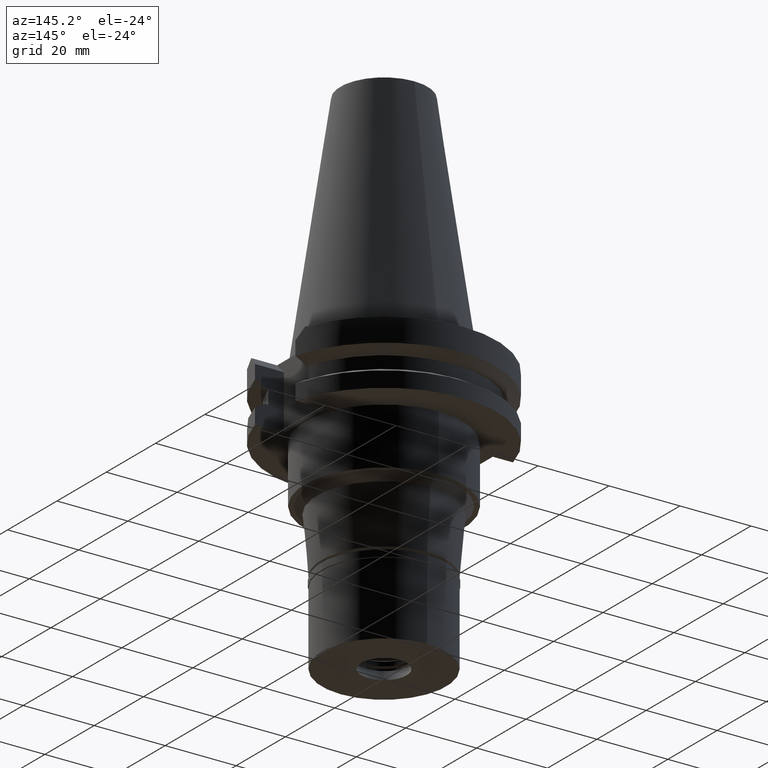
[diagram: clean part render]
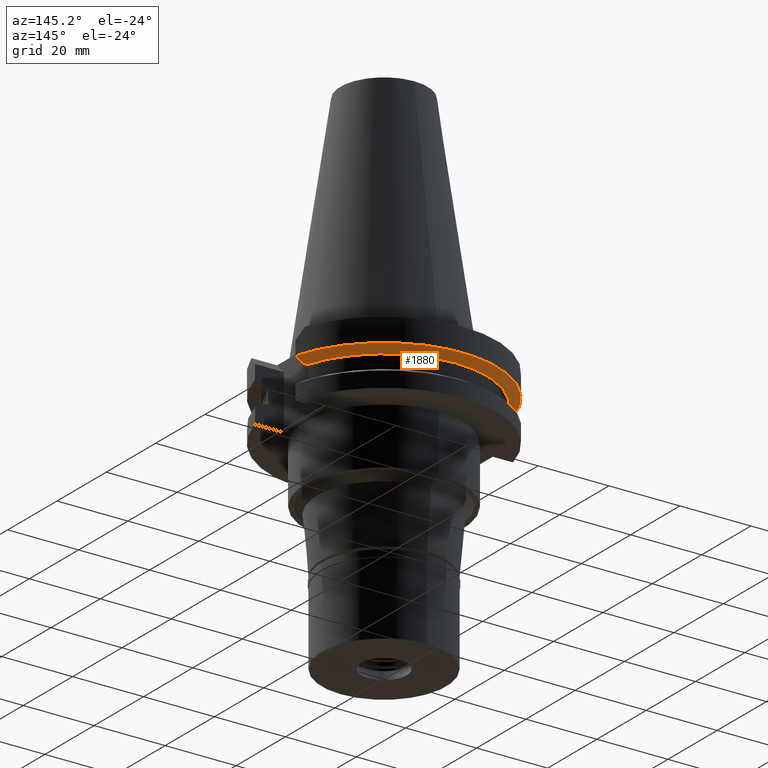
[diagram: same view with one face highlighted and labeled with its STEP entity id]
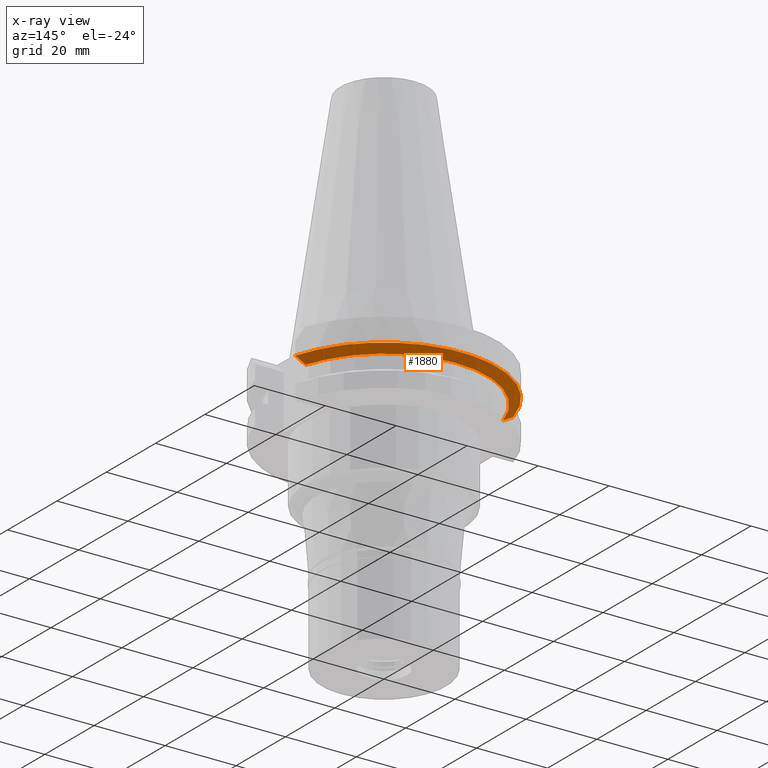
[diagram: x-ray of the same camera — body ghosted, the highlighted face saturated]
A machine part, auxiliary view. The second image highlights one B-rep face of the part: STEP entity #1880.
The next image is the same camera in x-ray: the body ghosted, the highlighted face saturated — about 2% of this face is hidden behind the body in this view.
In plain terms, the highlighted conical surface has half-angle 60 deg.
Its self-contained STEP definition (entity closure, byte-faithful):
#16 = EDGE_CURVE ( 'NONE', #690, #3021, #932, .T. ) ;
#117 = CARTESIAN_POINT ( 'NONE',  ( -27.79398349637000010, 8.190000188407999815, -9.210000000000999165 ) ) ;
#329 = CARTESIAN_POINT ( 'NONE',  ( -28.71170638819459597, 8.190000377242785845, -8.701759837849344592 ) ) ;
#340 = CARTESIAN_POINT ( 'NONE',  ( 30.67550165931999828, 8.189999874802001756, -7.608164476769999851 ) ) ;
#534 = VERTEX_POINT ( 'NONE', #2818 ) ;
#690 = VERTEX_POINT ( 'NONE', #340 ) ;
#695 = CARTESIAN_POINT ( 'NONE',  ( -30.67550146519999998, 8.190000601855000895, -7.608157979396000137 ) ) ;
#889 = B_SPLINE_CURVE_WITH_KNOTS ( 'NONE', 3,
 ( #1014, #2317, #1256, #1307 ),
 .UNSPECIFIED., .F., .F.,
 ( 4, 4 ),
 ( 0.0000000000000000000, 1.000000000000000000 ),
 .UNSPECIFIED. ) ;
#932 = CIRCLE ( 'NONE', #987, 31.74999999999998579 ) ;
#978 = EDGE_CURVE ( 'NONE', #690, #2575, #889, .T. ) ;
#987 = AXIS2_PLACEMENT_3D ( 'NONE', #3158, #1381, #2441 ) ;
#1014 = CARTESIAN_POINT ( 'NONE',  ( 30.67550165931999828, 8.189999874802001756, -7.608164476769999851 ) ) ;
#1068 = DIRECTION ( 'NONE',  ( 0.0000000000000000000, 1.000000000000000000, 0.0000000000000000000 ) ) ;
#1097 = ORIENTED_EDGE ( 'NONE', *, *, #16, .F. ) ;
#1106 = CARTESIAN_POINT ( 'NONE',  ( -30.67550146519999998, 8.190000601855000895, -7.608157979396000137 ) ) ;
#1219 = EDGE_CURVE ( 'NONE', #2575, #534, #3165, .T. ) ;
#1225 = CONICAL_SURFACE ( 'NONE', #1396, 30.36276877526999840, 1.047197551196400456 ) ;
#1256 = CARTESIAN_POINT ( 'NONE',  ( 28.71170968437685289, 8.189998727897421560, -8.701758259345771407 ) ) ;
#1307 = CARTESIAN_POINT ( 'NONE',  ( 27.79399590312999990, 8.189999364648000935, -9.210000000000999165 ) ) ;
#1327 = CARTESIAN_POINT ( 'NONE',  ( 27.79399590312999990, 8.189999364648000935, -9.210000000000999165 ) ) ;
#1364 = CARTESIAN_POINT ( 'NONE',  ( -29.67220486527797618, 8.190001203277260444, -8.167813457077079065 ) ) ;
#1381 = DIRECTION ( 'NONE',  ( 0.0000000000000000000, 0.0000000000000000000, 1.000000000000000000 ) ) ;
#1396 = AXIS2_PLACEMENT_3D ( 'NONE', #2016, #2997, #2797 ) ;
#1820 = EDGE_LOOP ( 'NONE', ( #2284, #2202, #2017, #1097 ) ) ;
#1880 = ADVANCED_FACE ( 'NONE', ( #2722 ), #1225, .T. ) ;
#1891 = CARTESIAN_POINT ( 'NONE',  ( 0.0000000000000000000, 1.121665249527999917E-14, -9.210000000002999343 ) ) ;
#2016 = CARTESIAN_POINT ( 'NONE',  ( 0.0000000000000000000, 1.121665249527999917E-14, -8.409081678974001051 ) ) ;
#2017 = ORIENTED_EDGE ( 'NONE', *, *, #2216, .T. ) ;
#2202 = ORIENTED_EDGE ( 'NONE', *, *, #1219, .T. ) ;
#2216 = EDGE_CURVE ( 'NONE', #534, #3021, #2274, .T. ) ;
#2274 = B_SPLINE_CURVE_WITH_KNOTS ( 'NONE', 3,
 ( #117, #329, #1364, #1106 ),
 .UNSPECIFIED., .F., .F.,
 ( 4, 4 ),
 ( 0.0000000000000000000, 1.000000000000000000 ),
 .UNSPECIFIED. ) ;
#2284 = ORIENTED_EDGE ( 'NONE', *, *, #978, .T. ) ;
#2317 = CARTESIAN_POINT ( 'NONE',  ( 29.67220409969074524, 8.189999749697445708, -8.167814104152103738 ) ) ;
#2441 = DIRECTION ( 'NONE',  ( 0.9661575315241073270, 0.2579527559055020958, 0.0000000000000000000 ) ) ;
#2575 = VERTEX_POINT ( 'NONE', #1327 ) ;
#2722 = FACE_OUTER_BOUND ( 'NONE', #1820, .T. ) ;
#2797 = DIRECTION ( 'NONE',  ( 0.0000000000000000000, 1.000000000000000000, 0.0000000000000000000 ) ) ;
#2818 = CARTESIAN_POINT ( 'NONE',  ( -27.79398349637000010, 8.190000188407999815, -9.210000000000999165 ) ) ;
#2997 = DIRECTION ( 'NONE',  ( 0.0000000000000000000, 0.0000000000000000000, 1.000000000000000000 ) ) ;
#3021 = VERTEX_POINT ( 'NONE', #695 ) ;
#3056 = AXIS2_PLACEMENT_3D ( 'NONE', #1891, #3181, #1068 ) ;
#3158 = CARTESIAN_POINT ( 'NONE',  ( 0.0000000000000000000, 1.121665249527999917E-14, -7.608163357944999206 ) ) ;
#3165 = CIRCLE ( 'NONE', #3056, 28.97553755052999946 ) ;
#3181 = DIRECTION ( 'NONE',  ( 0.0000000000000000000, 0.0000000000000000000, 1.000000000000000000 ) ) ;